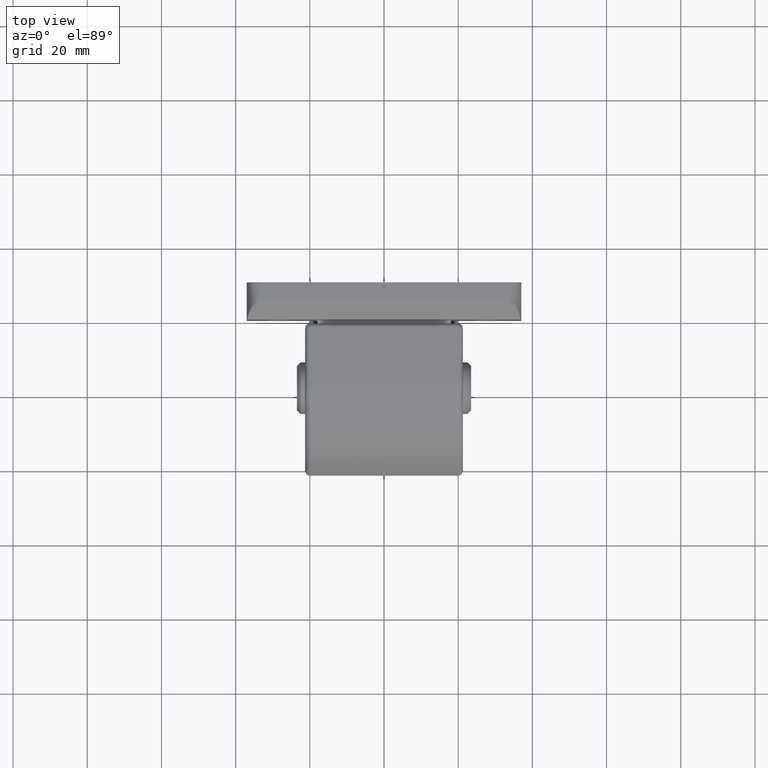
[diagram: clean part render]
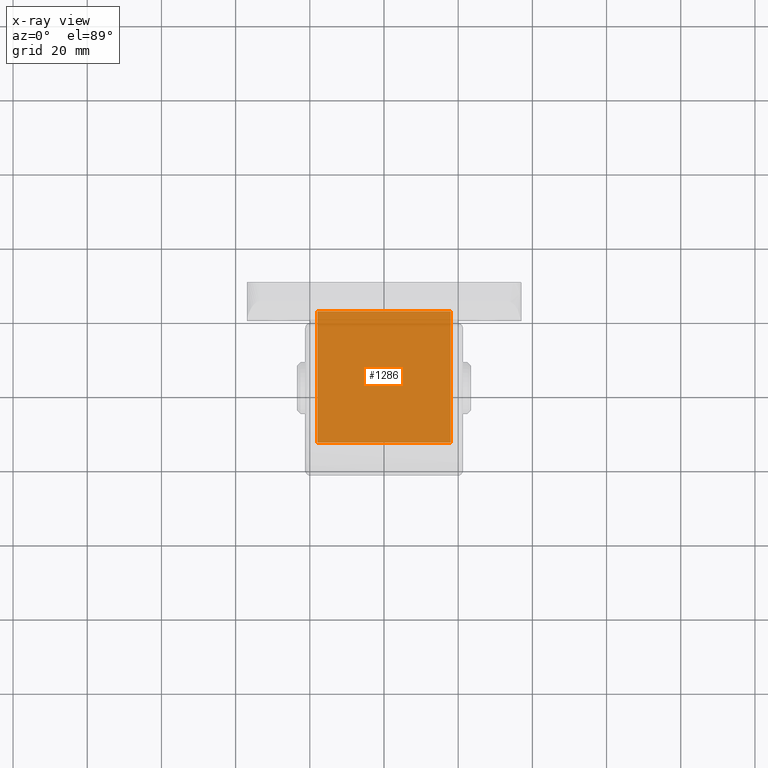
[diagram: x-ray — body ghosted, one internal face saturated and labeled with its STEP entity id]
A machine part, top view, then the same camera in x-ray: the body is ghosted and one INTERNAL B-rep face — a face not visible from any outside direction — is saturated and labeled: STEP entity #1286.
In plain terms, the highlighted face is a freeform B-spline surface patch.
Its self-contained STEP definition (entity closure, byte-faithful):
#1193=CARTESIAN_POINT('',(18.0,20.975638946517101,-15.0));
#1194=VERTEX_POINT('',#1193);
#1200=CARTESIAN_POINT('',(18.0,-14.355228512344720,-15.0));
#1201=VERTEX_POINT('',#1200);
#1202=CARTESIAN_POINT('',(18.0,20.975638946517101,-15.0));
#1203=CARTESIAN_POINT('',(18.0,-14.355228512344720,-15.0));
#1204=QUASI_UNIFORM_CURVE('',1,(#1202,#1203),.UNSPECIFIED.,.F.,.U.);
#1205=EDGE_CURVE('',#1194,#1201,#1204,.T.);
#1229=CARTESIAN_POINT('',(-18.0,-14.355228512344720,-15.0));
#1230=VERTEX_POINT('',#1229);
#1236=CARTESIAN_POINT('',(-18.0,20.975638946517101,-15.0));
#1237=VERTEX_POINT('',#1236);
#1238=CARTESIAN_POINT('',(-18.0,20.975638946517101,-15.0));
#1239=CARTESIAN_POINT('',(-18.0,-14.355228512344720,-15.0));
#1240=QUASI_UNIFORM_CURVE('',1,(#1238,#1239),.UNSPECIFIED.,.F.,.U.);
#1241=EDGE_CURVE('',#1237,#1230,#1240,.T.);
#1257=CARTESIAN_POINT('',(-18.0,-14.355228512344720,-15.0));
#1258=CARTESIAN_POINT('',(18.0,-14.355228512344720,-15.0));
#1259=QUASI_UNIFORM_CURVE('',1,(#1257,#1258),.UNSPECIFIED.,.F.,.U.);
#1260=EDGE_CURVE('',#1230,#1201,#1259,.T.);
#1271=CARTESIAN_POINT('',(-19.798199930225010,-16.120005273436789,-15.0));
#1272=CARTESIAN_POINT('',(19.798200895820258,-16.120005273436789,-15.0));
#1273=CARTESIAN_POINT('',(-19.798199930225010,22.740416655256880,-15.0));
#1274=CARTESIAN_POINT('',(19.798200895820258,22.740416655256880,-15.0));
#1275=B_SPLINE_SURFACE_WITH_KNOTS('',1,1,((#1271,#1273),(#1272,#1274)),.UNSPECIFIED.,.F.,.F.,.U.,(2,2),(2,2),(0.0,39.596400826045269),(0.0,38.860421928693668),.UNSPECIFIED.);
#1276=ORIENTED_EDGE('',*,*,#1205,.F.);
#1277=CARTESIAN_POINT('',(-18.0,20.975638946517101,-15.0));
#1278=CARTESIAN_POINT('',(18.0,20.975638946517101,-15.0));
#1279=QUASI_UNIFORM_CURVE('',1,(#1277,#1278),.UNSPECIFIED.,.F.,.U.);
#1280=EDGE_CURVE('',#1237,#1194,#1279,.T.);
#1281=ORIENTED_EDGE('',*,*,#1280,.F.);
#1282=ORIENTED_EDGE('',*,*,#1241,.T.);
#1283=ORIENTED_EDGE('',*,*,#1260,.T.);
#1284=EDGE_LOOP('',(#1276,#1281,#1282,#1283));
#1285=FACE_OUTER_BOUND('',#1284,.T.);
#1286=ADVANCED_FACE('',(#1285),#1275,.T.);